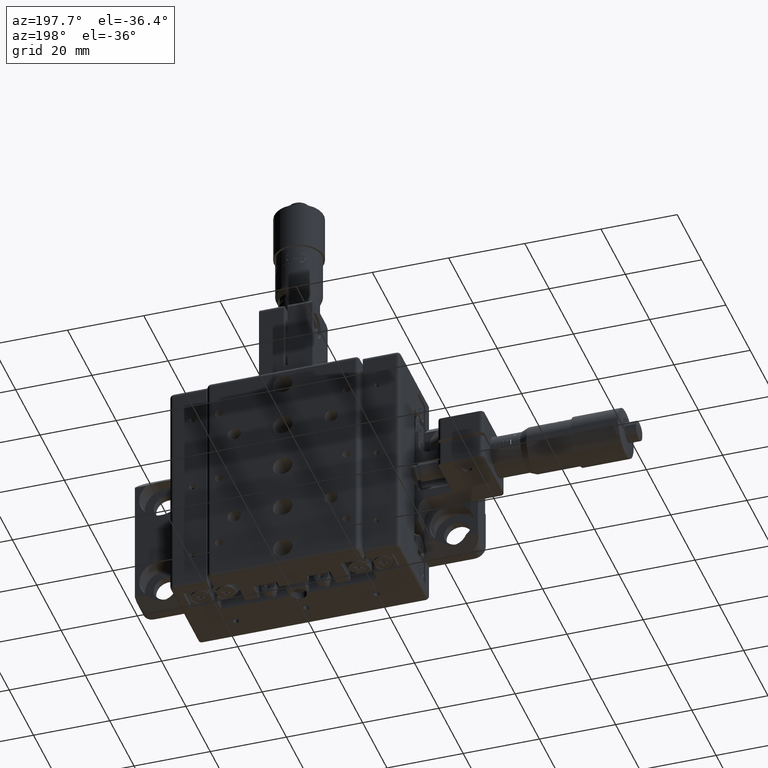
[diagram: clean part render]
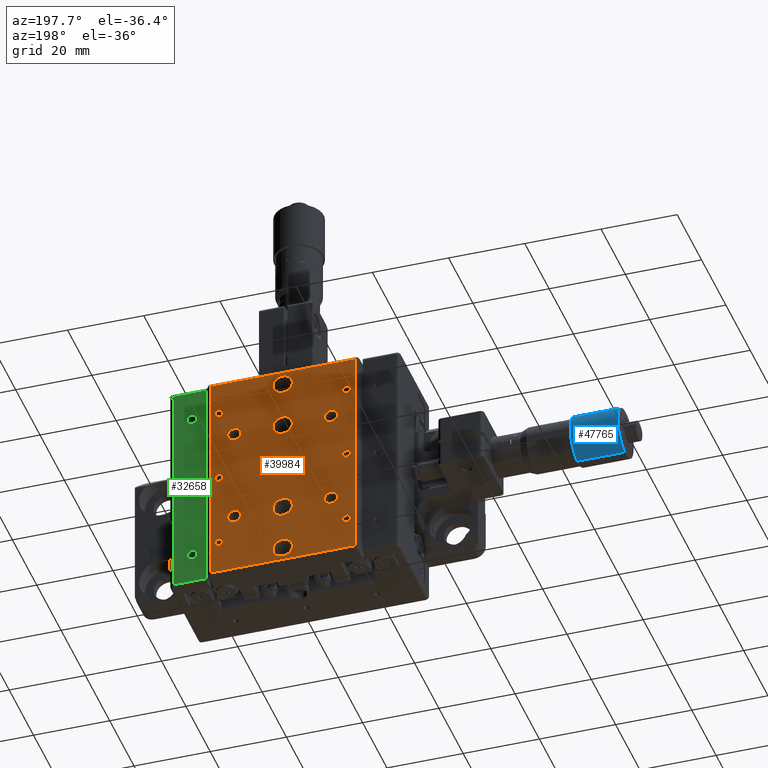
[diagram: same view with three faces highlighted in distinct colors, each labeled with its STEP entity id]
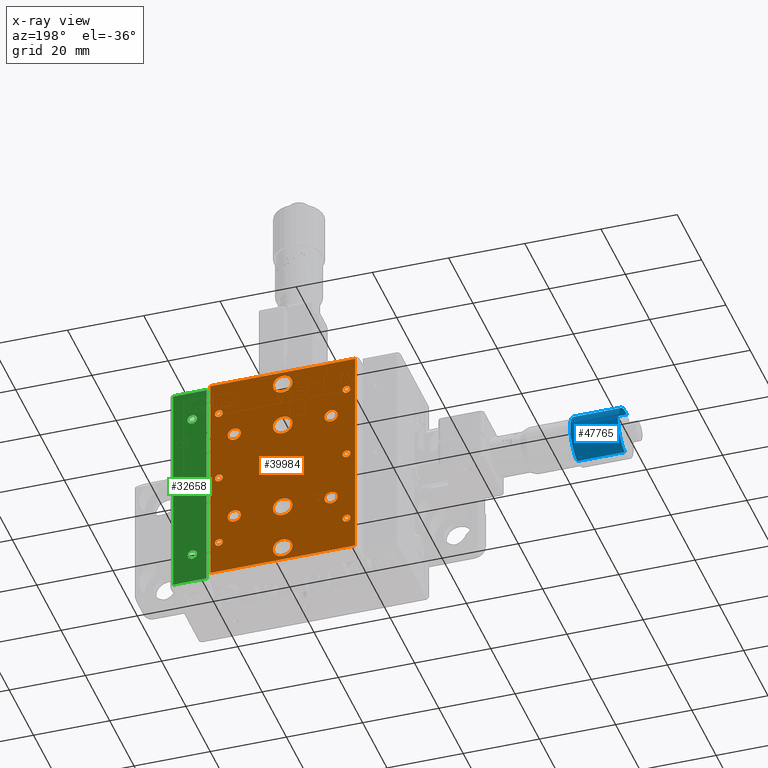
[diagram: x-ray of the same camera — body ghosted, the three highlighted faces saturated]
A machine part, auxiliary view with three faces highlighted in distinct colors.
The next image is the same camera in x-ray (body ghosted, the three faces saturated) — at least one of them is partly hidden behind the body in this view.
Their STEP definitions:

[orange] entity #39984 — the highlighted planar face has unit normal (-0, 1, -0).
#87 = AXIS2_PLACEMENT_3D ( 'NONE', #45107, #13342, #50493 ) ;
#143 = CIRCLE ( 'NONE', #40684, 1.024999999999994600 ) ;
#387 = ORIENTED_EDGE ( 'NONE', *, *, #55099, .F. ) ;
#418 = CARTESIAN_POINT ( 'NONE',  ( -1.603873673321537900E-012, 25.79999999999881400, -15.25270000000010900 ) ) ;
#641 = CARTESIAN_POINT ( 'NONE',  ( 18.99999999999842300, 25.79999999999913400, 28.99999999999989300 ) ) ;
#852 = EDGE_CURVE ( 'NONE', #3945, #21505, #47550, .T. ) ;
#1019 = EDGE_CURVE ( 'NONE', #47917, #67416, #50027, .T. ) ;
#1082 = DIRECTION ( 'NONE',  ( -1.633876696219429300E-014, 1.000000000000000000, -2.538117285788542700E-016 ) ) ;
#1132 = DIRECTION ( 'NONE',  ( -1.638907394299761400E-014, 1.000000000000000000, -2.538117285788542700E-016 ) ) ;
#1195 = AXIS2_PLACEMENT_3D ( 'NONE', #43201, #11487, #48583 ) ;
#1263 = AXIS2_PLACEMENT_3D ( 'NONE', #57486, #25689, #62786 ) ;
#1299 = FACE_OUTER_BOUND ( 'NONE', #34162, .T. ) ;
#1416 = CARTESIAN_POINT ( 'NONE',  ( -1.604227931610907800E-012, 25.79999999999881400, -12.70000000000011100 ) ) ;
#1533 = CIRCLE ( 'NONE', #28235, 1.024999999999991300 ) ;
#1598 = EDGE_CURVE ( 'NONE', #40451, #42971, #15044, .T. ) ;
#1759 = DIRECTION ( 'NONE',  ( -1.564113422114487800E-014, 1.000000000000000000, -2.538117285788541700E-016 ) ) ;
#2197 = EDGE_LOOP ( 'NONE', ( #68763, #11330 ) ) ;
#2328 = CARTESIAN_POINT ( 'NONE',  ( -1.616784113214822800E-012, 25.79999999999881100, -25.40000000000010500 ) ) ;
#2405 = ORIENTED_EDGE ( 'NONE', *, *, #36254, .F. ) ;
#2531 = CARTESIAN_POINT ( 'NONE',  ( -1.562707017318604100E-012, 25.79999999999881100, -22.84730000000010700 ) ) ;
#2833 = DIRECTION ( 'NONE',  ( -1.000000000000000000, -1.692413147294460400E-014, -1.387778780781349800E-016 ) ) ;
#2982 = FACE_BOUND ( 'NONE', #22711, .T. ) ;
#3443 = EDGE_CURVE ( 'NONE', #19066, #22764, #24343, .T. ) ;
#3642 = CIRCLE ( 'NONE', #12338, 1.024999999999994600 ) ;
#3750 = VERTEX_POINT ( 'NONE', #20803 ) ;
#3945 = VERTEX_POINT ( 'NONE', #43868 ) ;
#3979 = CARTESIAN_POINT ( 'NONE',  ( 16.74999999999841900, 25.79999999999908400, -21.02500000000010500 ) ) ;
#4351 = CIRCLE ( 'NONE', #36130, 2.552699999999998000 ) ;
#4441 = ORIENTED_EDGE ( 'NONE', *, *, #58776, .F. ) ;
#4644 = FACE_BOUND ( 'NONE', #42355, .T. ) ;
#4809 = CIRCLE ( 'NONE', #10150, 1.727199999999998100 ) ;
#5023 = VECTOR ( 'NONE', #23601, 1000.000000000000000 ) ;
#5103 = DIRECTION ( 'NONE',  ( -1.000000000000000000, -1.692413147294460400E-014, -1.387778780781349800E-016 ) ) ;
#5978 = EDGE_CURVE ( 'NONE', #47491, #61917, #4351, .T. ) ;
#6000 = EDGE_LOOP ( 'NONE', ( #33845, #35490 ) ) ;
#6096 = ORIENTED_EDGE ( 'NONE', *, *, #59088, .F. ) ;
#6285 = FACE_BOUND ( 'NONE', #38926, .T. ) ;
#6426 = ORIENTED_EDGE ( 'NONE', *, *, #9205, .F. ) ;
#6741 = DIRECTION ( 'NONE',  ( 1.387778780781269900E-016, 0.0000000000000000000, -1.000000000000000000 ) ) ;
#6905 = CARTESIAN_POINT ( 'NONE',  ( 12.69999999999836300, 25.79999999999902400, 12.69999999999989600 ) ) ;
#7229 = EDGE_LOOP ( 'NONE', ( #26338, #387 ) ) ;
#7283 = CIRCLE ( 'NONE', #1263, 1.024999999999991300 ) ;
#7302 = EDGE_CURVE ( 'NONE', #47858, #9190, #1533, .T. ) ;
#7303 = ORIENTED_EDGE ( 'NONE', *, *, #15355, .F. ) ;
#7455 = DIRECTION ( 'NONE',  ( -1.638907394299761400E-014, 1.000000000000000000, -2.538117285788542700E-016 ) ) ;
#7637 = AXIS2_PLACEMENT_3D ( 'NONE', #40880, #9192, #46271 ) ;
#7646 = DIRECTION ( 'NONE',  ( 1.387778780781269900E-016, 0.0000000000000000000, -1.000000000000000000 ) ) ;
#7758 = CARTESIAN_POINT ( 'NONE',  ( 16.74999999999841200, 25.79999999999908800, 1.024999999999888900 ) ) ;
#7894 = CARTESIAN_POINT ( 'NONE',  ( -1.607752889714093000E-012, 25.79999999999882100, 12.69999999999989300 ) ) ;
#8936 = AXIS2_PLACEMENT_3D ( 'NONE', #32815, #1082, #38153 ) ;
#9190 = VERTEX_POINT ( 'NONE', #65930 ) ;
#9192 = DIRECTION ( 'NONE',  ( -1.564113422114487800E-014, 1.000000000000000000, -2.538117285788541700E-016 ) ) ;
#9205 = EDGE_CURVE ( 'NONE', #25127, #16005, #43427, .T. ) ;
#9428 = CIRCLE ( 'NONE', #59776, 1.727199999999998100 ) ;
#9620 = EDGE_CURVE ( 'NONE', #45819, #35976, #16026, .T. ) ;
#10001 = CARTESIAN_POINT ( 'NONE',  ( -1.607752889714093000E-012, 25.79999999999882100, 12.69999999999989300 ) ) ;
#10150 = AXIS2_PLACEMENT_3D ( 'NONE', #50671, #18935, #56009 ) ;
#10170 = CARTESIAN_POINT ( 'NONE',  ( 12.69999999999836700, 25.79999999999901700, -12.70000000000011100 ) ) ;
#10211 = VECTOR ( 'NONE', #13570, 1000.000000000000000 ) ;
#10811 = VERTEX_POINT ( 'NONE', #45616 ) ;
#11037 = ORIENTED_EDGE ( 'NONE', *, *, #34597, .F. ) ;
#11330 = ORIENTED_EDGE ( 'NONE', *, *, #67989, .F. ) ;
#11487 = DIRECTION ( 'NONE',  ( -1.564113422114487800E-014, 1.000000000000000000, -2.538117285788541700E-016 ) ) ;
#11531 = PLANE ( 'NONE',  #8936 ) ;
#11730 = CARTESIAN_POINT ( 'NONE',  ( 16.74999999999837300, 25.79999999999909500, 19.99999999999989300 ) ) ;
#12245 = DIRECTION ( 'NONE',  ( 0.0000000000000000000, 0.0000000000000000000, -1.000000000000000000 ) ) ;
#12267 = AXIS2_PLACEMENT_3D ( 'NONE', #32863, #1132, #38201 ) ;
#12338 = AXIS2_PLACEMENT_3D ( 'NONE', #26376, #63461, #31629 ) ;
#12605 = CARTESIAN_POINT ( 'NONE',  ( -1.550150835714689100E-012, 25.79999999999881400, -10.14730000000011100 ) ) ;
#12689 = CARTESIAN_POINT ( 'NONE',  ( -12.70000000000163200, 25.79999999999860400, -14.42720000000010900 ) ) ;
#12774 = AXIS2_PLACEMENT_3D ( 'NONE', #28476, #65589, #33740 ) ;
#12865 = CARTESIAN_POINT ( 'NONE',  ( 18.99999999999842300, 25.79999999999913400, 28.99999999999989300 ) ) ;
#13034 = DIRECTION ( 'NONE',  ( 1.387778780781269900E-016, 0.0000000000000000000, -1.000000000000000000 ) ) ;
#13152 = CARTESIAN_POINT ( 'NONE',  ( 16.74999999999838000, 25.79999999999908400, -20.00000000000011000 ) ) ;
#13171 = LINE ( 'NONE', #66200, #67982 ) ;
#13206 = DIRECTION ( 'NONE',  ( 1.387778780781269900E-016, 0.0000000000000000000, -1.000000000000000000 ) ) ;
#13342 = DIRECTION ( 'NONE',  ( -1.564113422114487800E-014, 1.000000000000000000, -2.538117285788541700E-016 ) ) ;
#13570 = DIRECTION ( 'NONE',  ( -1.387778780781508800E-016, 2.775557561562865700E-016, 1.000000000000000000 ) ) ;
#14724 = ORIENTED_EDGE ( 'NONE', *, *, #3443, .F. ) ;
#14755 = ORIENTED_EDGE ( 'NONE', *, *, #19184, .T. ) ;
#14777 = DIRECTION ( 'NONE',  ( -1.638907394299761400E-014, 1.000000000000000000, -2.538117285788542700E-016 ) ) ;
#15004 = EDGE_CURVE ( 'NONE', #46439, #58244, #60513, .T. ) ;
#15044 = CIRCLE ( 'NONE', #7637, 1.727199999999998100 ) ;
#15165 = CIRCLE ( 'NONE', #21349, 2.552699999999998900 ) ;
#15192 = AXIS2_PLACEMENT_3D ( 'NONE', #44794, #39409, #13034 ) ;
#15306 = CIRCLE ( 'NONE', #48767, 2.552699999999998000 ) ;
#15350 = DIRECTION ( 'NONE',  ( 1.387778780781269900E-016, 0.0000000000000000000, -1.000000000000000000 ) ) ;
#15355 = EDGE_CURVE ( 'NONE', #67794, #3750, #4809, .T. ) ;
#15447 = FACE_BOUND ( 'NONE', #31550, .T. ) ;
#15537 = DIRECTION ( 'NONE',  ( 0.0000000000000000000, 0.0000000000000000000, -1.000000000000000000 ) ) ;
#15629 = ORIENTED_EDGE ( 'NONE', *, *, #31192, .F. ) ;
#16005 = VERTEX_POINT ( 'NONE', #26915 ) ;
#16026 = CIRCLE ( 'NONE', #45296, 1.024999999999994600 ) ;
#16135 = ORIENTED_EDGE ( 'NONE', *, *, #58492, .F. ) ;
#16218 = CARTESIAN_POINT ( 'NONE',  ( 12.69999999999839500, 25.79999999999902400, 14.42719999999989400 ) ) ;
#16298 = ORIENTED_EDGE ( 'NONE', *, *, #53686, .F. ) ;
#16651 = CARTESIAN_POINT ( 'NONE',  ( 16.74999999999841200, 25.79999999999909500, 18.97499999999990200 ) ) ;
#16956 = CARTESIAN_POINT ( 'NONE',  ( -16.75000000000160900, 25.79999999999854800, 18.97499999999990200 ) ) ;
#17105 = DIRECTION ( 'NONE',  ( -1.000000000000000000, -1.692413147294454800E-014, 0.0000000000000000000 ) ) ;
#17120 = FACE_BOUND ( 'NONE', #21745, .T. ) ;
#17455 = AXIS2_PLACEMENT_3D ( 'NONE', #10001, #47087, #15350 ) ;
#17474 = CARTESIAN_POINT ( 'NONE',  ( -1.607398631424722900E-012, 25.79999999999882100, 10.14729999999989500 ) ) ;
#18108 = CIRCLE ( 'NONE', #53519, 2.552699999999998000 ) ;
#18565 = DIRECTION ( 'NONE',  ( -1.000000000000000000, -1.692413147294454800E-014, 0.0000000000000000000 ) ) ;
#18770 = EDGE_CURVE ( 'NONE', #42971, #40451, #9428, .T. ) ;
#18795 = FACE_BOUND ( 'NONE', #43532, .T. ) ;
#18935 = DIRECTION ( 'NONE',  ( -1.564113422114487800E-014, 1.000000000000000000, -2.538117285788541700E-016 ) ) ;
#19066 = VERTEX_POINT ( 'NONE', #65342 ) ;
#19184 = EDGE_CURVE ( 'NONE', #32205, #30252, #54161, .T. ) ;
#19508 = CARTESIAN_POINT ( 'NONE',  ( 16.74999999999838000, 25.79999999999908400, -20.00000000000011000 ) ) ;
#19734 = DIRECTION ( 'NONE',  ( -1.564113422114487800E-014, 1.000000000000000000, -2.538117285788541700E-016 ) ) ;
#20015 = CARTESIAN_POINT ( 'NONE',  ( -16.75000000000160200, 25.79999999999853700, -21.02500000000010500 ) ) ;
#20466 = FACE_BOUND ( 'NONE', #46074, .T. ) ;
#20803 = CARTESIAN_POINT ( 'NONE',  ( -12.70000000000160000, 25.79999999999860400, -10.97280000000011300 ) ) ;
#21168 = AXIS2_PLACEMENT_3D ( 'NONE', #1416, #38488, #6741 ) ;
#21349 = AXIS2_PLACEMENT_3D ( 'NONE', #33481, #1759, #38828 ) ;
#21505 = VERTEX_POINT ( 'NONE', #16218 ) ;
#21745 = EDGE_LOOP ( 'NONE', ( #27864, #15629 ) ) ;
#22305 = ORIENTED_EDGE ( 'NONE', *, *, #35230, .F. ) ;
#22446 = ORIENTED_EDGE ( 'NONE', *, *, #23194, .F. ) ;
#22711 = EDGE_LOOP ( 'NONE', ( #6426, #46269 ) ) ;
#22764 = VERTEX_POINT ( 'NONE', #641 ) ;
#23194 = EDGE_CURVE ( 'NONE', #56901, #50173, #3642, .T. ) ;
#23368 = CIRCLE ( 'NONE', #38560, 1.727199999999998100 ) ;
#23601 = DIRECTION ( 'NONE',  ( 1.000000000000000000, 1.633876696219429300E-014, 1.387778780781364800E-016 ) ) ;
#24153 = CARTESIAN_POINT ( 'NONE',  ( -1.550178591290304900E-012, 25.79999999999881800, 2.552699999999891400 ) ) ;
#24214 = EDGE_CURVE ( 'NONE', #16005, #25127, #62546, .T. ) ;
#24343 = LINE ( 'NONE', #61131, #10211 ) ;
#24644 = ORIENTED_EDGE ( 'NONE', *, *, #51041, .T. ) ;
#24809 = DIRECTION ( 'NONE',  ( -1.000000000000000000, -1.692413147294454800E-014, 0.0000000000000000000 ) ) ;
#24957 = DIRECTION ( 'NONE',  ( -1.564113422114487800E-014, 1.000000000000000000, -2.538117285788541700E-016 ) ) ;
#25120 = DIRECTION ( 'NONE',  ( -1.564113422114487800E-014, 1.000000000000000000, -2.538117285788541700E-016 ) ) ;
#25127 = VERTEX_POINT ( 'NONE', #7758 ) ;
#25317 = CARTESIAN_POINT ( 'NONE',  ( -1.583634721332788800E-012, 25.79999999999882500, 27.95269999999989000 ) ) ;
#25675 = CARTESIAN_POINT ( 'NONE',  ( -12.70000000000160300, 25.79999999999861200, 14.42719999999988700 ) ) ;
#25689 = DIRECTION ( 'NONE',  ( -1.638907394299761400E-014, 1.000000000000000000, -2.538117285788542700E-016 ) ) ;
#25725 = VERTEX_POINT ( 'NONE', #16956 ) ;
#25799 = DIRECTION ( 'NONE',  ( 0.0000000000000000000, 0.0000000000000000000, -1.000000000000000000 ) ) ;
#26138 = ORIENTED_EDGE ( 'NONE', *, *, #5978, .F. ) ;
#26338 = ORIENTED_EDGE ( 'NONE', *, *, #1019, .F. ) ;
#26376 = CARTESIAN_POINT ( 'NONE',  ( -16.75000000000164100, 25.79999999999853700, -20.00000000000011000 ) ) ;
#26697 = CARTESIAN_POINT ( 'NONE',  ( -16.75000000000160900, 25.79999999999854800, 21.02499999999988500 ) ) ;
#26897 = CIRCLE ( 'NONE', #1195, 1.727199999999998100 ) ;
#26915 = CARTESIAN_POINT ( 'NONE',  ( 16.74999999999841200, 25.79999999999908800, -1.025000000000096900 ) ) ;
#27006 = CIRCLE ( 'NONE', #12267, 1.024999999999994600 ) ;
#27431 = DIRECTION ( 'NONE',  ( -1.564113422114487800E-014, 1.000000000000000000, -2.538117285788541700E-016 ) ) ;
#27568 = DIRECTION ( 'NONE',  ( -1.638907394299761400E-014, 1.000000000000000000, -2.538117285788542700E-016 ) ) ;
#27864 = ORIENTED_EDGE ( 'NONE', *, *, #9620, .F. ) ;
#28235 = AXIS2_PLACEMENT_3D ( 'NONE', #62609, #30822, #67955 ) ;
#28476 = CARTESIAN_POINT ( 'NONE',  ( -12.70000000000163500, 25.79999999999861200, 12.69999999999988900 ) ) ;
#29533 = FACE_BOUND ( 'NONE', #2197, .T. ) ;
#30099 = VERTEX_POINT ( 'NONE', #2531 ) ;
#30252 = VERTEX_POINT ( 'NONE', #56616 ) ;
#30476 = DIRECTION ( 'NONE',  ( -1.564113422114487800E-014, 1.000000000000000000, -2.538117285788541700E-016 ) ) ;
#30822 = DIRECTION ( 'NONE',  ( -1.638907394299761400E-014, 1.000000000000000000, -2.538117285788542700E-016 ) ) ;
#31177 = FACE_BOUND ( 'NONE', #66435, .T. ) ;
#31192 = EDGE_CURVE ( 'NONE', #35976, #45819, #56943, .T. ) ;
#31218 = CIRCLE ( 'NONE', #21168, 2.552699999999998000 ) ;
#31550 = EDGE_LOOP ( 'NONE', ( #6096, #66687 ) ) ;
#31629 = DIRECTION ( 'NONE',  ( -1.000000000000000000, -1.692413147294454800E-014, 0.0000000000000000000 ) ) ;
#32205 = VERTEX_POINT ( 'NONE', #35305 ) ;
#32499 = VERTEX_POINT ( 'NONE', #48748 ) ;
#32756 = AXIS2_PLACEMENT_3D ( 'NONE', #66393, #34562, #2833 ) ;
#32815 = CARTESIAN_POINT ( 'NONE',  ( 18.99999999999842600, 25.79999999999912000, -30.00000000000010700 ) ) ;
#32863 = CARTESIAN_POINT ( 'NONE',  ( -16.75000000000164800, 25.79999999999854800, 19.99999999999989300 ) ) ;
#32955 = ORIENTED_EDGE ( 'NONE', *, *, #52912, .F. ) ;
#32980 = EDGE_CURVE ( 'NONE', #56229, #56291, #15165, .T. ) ;
#33184 = LINE ( 'NONE', #12865, #5023 ) ;
#33481 = CARTESIAN_POINT ( 'NONE',  ( -1.604255687186523600E-012, 25.79999999999881800, -1.075528555105620400E-013 ) ) ;
#33740 = DIRECTION ( 'NONE',  ( 0.0000000000000000000, 0.0000000000000000000, -1.000000000000000000 ) ) ;
#33845 = ORIENTED_EDGE ( 'NONE', *, *, #1598, .F. ) ;
#34162 = EDGE_LOOP ( 'NONE', ( #14724, #24644, #14755, #58719 ) ) ;
#34562 = DIRECTION ( 'NONE',  ( -1.638907394299761400E-014, 1.000000000000000000, -2.538117285788542700E-016 ) ) ;
#34597 = EDGE_CURVE ( 'NONE', #56291, #56229, #48898, .T. ) ;
#35009 = ORIENTED_EDGE ( 'NONE', *, *, #65248, .F. ) ;
#35230 = EDGE_CURVE ( 'NONE', #61917, #47491, #64013, .T. ) ;
#35305 = CARTESIAN_POINT ( 'NONE',  ( -19.00000000000163100, 25.79999999999849800, -29.00000000000010700 ) ) ;
#35490 = ORIENTED_EDGE ( 'NONE', *, *, #18770, .F. ) ;
#35802 = CIRCLE ( 'NONE', #59248, 1.024999999999994600 ) ;
#35976 = VERTEX_POINT ( 'NONE', #16651 ) ;
#36130 = AXIS2_PLACEMENT_3D ( 'NONE', #7894, #44974, #13206 ) ;
#36254 = EDGE_CURVE ( 'NONE', #37628, #60281, #18108, .T. ) ;
#36700 = CIRCLE ( 'NONE', #43334, 2.552699999999998000 ) ;
#36849 = DIRECTION ( 'NONE',  ( -1.638907394299761400E-014, 1.000000000000000000, -2.538117285788542700E-016 ) ) ;
#36954 = EDGE_CURVE ( 'NONE', #25725, #40947, #27006, .T. ) ;
#37446 = EDGE_CURVE ( 'NONE', #58244, #46439, #26897, .T. ) ;
#37628 = VERTEX_POINT ( 'NONE', #12605 ) ;
#38085 = AXIS2_PLACEMENT_3D ( 'NONE', #46499, #14777, #51890 ) ;
#38153 = DIRECTION ( 'NONE',  ( -1.000000000000000000, -1.633876696219429300E-014, -1.387778780781364800E-016 ) ) ;
#38201 = DIRECTION ( 'NONE',  ( -1.000000000000000000, -1.692413147294454800E-014, 0.0000000000000000000 ) ) ;
#38488 = DIRECTION ( 'NONE',  ( -1.564113422114487800E-014, 1.000000000000000000, -2.538117285788541700E-016 ) ) ;
#38560 = AXIS2_PLACEMENT_3D ( 'NONE', #59234, #27431, #64560 ) ;
#38674 = EDGE_CURVE ( 'NONE', #21505, #3945, #59620, .T. ) ;
#38814 = AXIS2_PLACEMENT_3D ( 'NONE', #19508, #56602, #24809 ) ;
#38828 = DIRECTION ( 'NONE',  ( 1.387778780781269400E-016, 0.0000000000000000000, -1.000000000000000000 ) ) ;
#38926 = EDGE_LOOP ( 'NONE', ( #47251, #44561 ) ) ;
#39174 = CARTESIAN_POINT ( 'NONE',  ( 16.74999999999837300, 25.79999999999909500, 19.99999999999989300 ) ) ;
#39360 = DIRECTION ( 'NONE',  ( -1.564113422114487800E-014, 1.000000000000000000, -2.538117285788541700E-016 ) ) ;
#39409 = DIRECTION ( 'NONE',  ( -1.564113422114487800E-014, 1.000000000000000000, -2.538117285788541700E-016 ) ) ;
#39776 = CIRCLE ( 'NONE', #38085, 1.024999999999994600 ) ;
#39943 = VECTOR ( 'NONE', #39942, 1000.000000000000000 ) ;
#39942 = DIRECTION ( 'NONE',  ( -1.387778780781508800E-016, 2.775557561562865700E-016, 1.000000000000000000 ) ) ;
#39984 = ADVANCED_FACE ( 'NONE', ( #6285, #61067, #20466, #46941, #18795, #4644, #59439, #45264, #31177, #17120, #2982, #57803, #43586, #29533, #15447, #1299 ), #11531, .T. ) ;
#40451 = VERTEX_POINT ( 'NONE', #64792 ) ;
#40627 = ORIENTED_EDGE ( 'NONE', *, *, #32980, .F. ) ;
#40684 = AXIS2_PLACEMENT_3D ( 'NONE', #59358, #27568, #64684 ) ;
#40880 = CARTESIAN_POINT ( 'NONE',  ( 12.69999999999836700, 25.79999999999901700, -12.70000000000011100 ) ) ;
#40947 = VERTEX_POINT ( 'NONE', #26697 ) ;
#41077 = CARTESIAN_POINT ( 'NONE',  ( 12.69999999999839900, 25.79999999999901700, -10.97280000000011300 ) ) ;
#41152 = EDGE_CURVE ( 'NONE', #32499, #52373, #35802, .T. ) ;
#42355 = EDGE_LOOP ( 'NONE', ( #11037, #40627 ) ) ;
#42971 = VERTEX_POINT ( 'NONE', #41077 ) ;
#43201 = CARTESIAN_POINT ( 'NONE',  ( -12.70000000000163500, 25.79999999999861200, 12.69999999999988900 ) ) ;
#43207 = EDGE_LOOP ( 'NONE', ( #65905, #35009 ) ) ;
#43334 = AXIS2_PLACEMENT_3D ( 'NONE', #2328, #39360, #7646 ) ;
#43427 = CIRCLE ( 'NONE', #32756, 1.024999999999991300 ) ;
#43532 = EDGE_LOOP ( 'NONE', ( #22305, #26138 ) ) ;
#43586 = FACE_BOUND ( 'NONE', #44601, .T. ) ;
#43868 = CARTESIAN_POINT ( 'NONE',  ( 12.69999999999836300, 25.79999999999902400, 10.97279999999989600 ) ) ;
#43997 = DIRECTION ( 'NONE',  ( -1.564113422114487800E-014, 1.000000000000000000, -2.538117285788541700E-016 ) ) ;
#44545 = DIRECTION ( 'NONE',  ( -1.000000000000000000, -1.692413147294454800E-014, 0.0000000000000000000 ) ) ;
#44561 = ORIENTED_EDGE ( 'NONE', *, *, #38674, .F. ) ;
#44601 = EDGE_LOOP ( 'NONE', ( #22446, #4441 ) ) ;
#44794 = CARTESIAN_POINT ( 'NONE',  ( -1.637711817229007400E-012, 25.79999999999882500, 25.39999999999989200 ) ) ;
#44974 = DIRECTION ( 'NONE',  ( -1.564113422114487800E-014, 1.000000000000000000, -2.538117285788541700E-016 ) ) ;
#45046 = DIRECTION ( 'NONE',  ( -1.000000000000000000, -1.633876696219429300E-014, -1.387778780781364800E-016 ) ) ;
#45107 = CARTESIAN_POINT ( 'NONE',  ( -1.604255687186523600E-012, 25.79999999999881800, -1.075528555105620400E-013 ) ) ;
#45264 = FACE_BOUND ( 'NONE', #7229, .T. ) ;
#45296 = AXIS2_PLACEMENT_3D ( 'NONE', #11730, #48837, #17105 ) ;
#45595 = EDGE_CURVE ( 'NONE', #60281, #37628, #31218, .T. ) ;
#45616 = CARTESIAN_POINT ( 'NONE',  ( -1.616429854925452700E-012, 25.79999999999881100, -27.95270000000010300 ) ) ;
#45819 = VERTEX_POINT ( 'NONE', #56866 ) ;
#45848 = CARTESIAN_POINT ( 'NONE',  ( -16.75000000000160900, 25.79999999999854400, 1.024999999999882000 ) ) ;
#45891 = ORIENTED_EDGE ( 'NONE', *, *, #15004, .F. ) ;
#46074 = EDGE_LOOP ( 'NONE', ( #7303, #16298 ) ) ;
#46269 = ORIENTED_EDGE ( 'NONE', *, *, #24214, .F. ) ;
#46271 = DIRECTION ( 'NONE',  ( 0.0000000000000000000, 0.0000000000000000000, -1.000000000000000000 ) ) ;
#46439 = VERTEX_POINT ( 'NONE', #47441 ) ;
#46499 = CARTESIAN_POINT ( 'NONE',  ( -16.75000000000164800, 25.79999999999854800, 19.99999999999989300 ) ) ;
#46625 = CARTESIAN_POINT ( 'NONE',  ( -1.553675793817874100E-012, 25.79999999999882100, 15.25269999999989200 ) ) ;
#46941 = FACE_BOUND ( 'NONE', #6000, .T. ) ;
#47087 = DIRECTION ( 'NONE',  ( -1.564113422114487800E-014, 1.000000000000000000, -2.538117285788541700E-016 ) ) ;
#47251 = ORIENTED_EDGE ( 'NONE', *, *, #852, .F. ) ;
#47258 = DIRECTION ( 'NONE',  ( -1.564113422114487800E-014, 1.000000000000000000, -2.538117285788541700E-016 ) ) ;
#47441 = CARTESIAN_POINT ( 'NONE',  ( -12.70000000000163500, 25.79999999999861200, 10.97279999999989100 ) ) ;
#47491 = VERTEX_POINT ( 'NONE', #46625 ) ;
#47550 = CIRCLE ( 'NONE', #52103, 1.727199999999998100 ) ;
#47858 = VERTEX_POINT ( 'NONE', #45848 ) ;
#47917 = VERTEX_POINT ( 'NONE', #51499 ) ;
#48402 = AXIS2_PLACEMENT_3D ( 'NONE', #68659, #36849, #5103 ) ;
#48583 = DIRECTION ( 'NONE',  ( 0.0000000000000000000, 0.0000000000000000000, -1.000000000000000000 ) ) ;
#48748 = CARTESIAN_POINT ( 'NONE',  ( 16.74999999999841900, 25.79999999999908400, -18.97500000000011500 ) ) ;
#48767 = AXIS2_PLACEMENT_3D ( 'NONE', #51482, #19734, #56811 ) ;
#48837 = DIRECTION ( 'NONE',  ( -1.638907394299761400E-014, 1.000000000000000000, -2.538117285788542700E-016 ) ) ;
#48898 = CIRCLE ( 'NONE', #87, 2.552699999999998900 ) ;
#50027 = CIRCLE ( 'NONE', #15192, 2.552699999999998000 ) ;
#50173 = VERTEX_POINT ( 'NONE', #20015 ) ;
#50174 = AXIS2_PLACEMENT_3D ( 'NONE', #6905, #43997, #12245 ) ;
#50308 = DIRECTION ( 'NONE',  ( -1.638907394299761400E-014, 1.000000000000000000, -2.538117285788542700E-016 ) ) ;
#50493 = DIRECTION ( 'NONE',  ( 1.387778780781269400E-016, 0.0000000000000000000, -1.000000000000000000 ) ) ;
#50671 = CARTESIAN_POINT ( 'NONE',  ( -12.70000000000163200, 25.79999999999860400, -12.70000000000011100 ) ) ;
#50715 = AXIS2_PLACEMENT_3D ( 'NONE', #62254, #30476, #67599 ) ;
#51041 = EDGE_CURVE ( 'NONE', #19066, #32205, #13171, .T. ) ;
#51284 = CIRCLE ( 'NONE', #50715, 2.552699999999998000 ) ;
#51482 = CARTESIAN_POINT ( 'NONE',  ( -1.616784113214822800E-012, 25.79999999999881100, -25.40000000000010500 ) ) ;
#51499 = CARTESIAN_POINT ( 'NONE',  ( -1.637357558939637300E-012, 25.79999999999882500, 22.84729999999989400 ) ) ;
#51890 = DIRECTION ( 'NONE',  ( -1.000000000000000000, -1.692413147294454800E-014, 0.0000000000000000000 ) ) ;
#52103 = AXIS2_PLACEMENT_3D ( 'NONE', #62202, #25120, #25799 ) ;
#52373 = VERTEX_POINT ( 'NONE', #3979 ) ;
#52912 = EDGE_CURVE ( 'NONE', #30099, #10811, #15306, .T. ) ;
#53519 = AXIS2_PLACEMENT_3D ( 'NONE', #56742, #24957, #62030 ) ;
#53686 = EDGE_CURVE ( 'NONE', #3750, #67794, #23368, .T. ) ;
#54161 = LINE ( 'NONE', #61141, #39943 ) ;
#55099 = EDGE_CURVE ( 'NONE', #67416, #47917, #51284, .T. ) ;
#56009 = DIRECTION ( 'NONE',  ( 0.0000000000000000000, 0.0000000000000000000, -1.000000000000000000 ) ) ;
#56077 = AXIS2_PLACEMENT_3D ( 'NONE', #39174, #7455, #44545 ) ;
#56170 = CARTESIAN_POINT ( 'NONE',  ( -1.603901428897153500E-012, 25.79999999999881800, -2.552700000000106300 ) ) ;
#56229 = VERTEX_POINT ( 'NONE', #24153 ) ;
#56257 = CIRCLE ( 'NONE', #38814, 1.024999999999994600 ) ;
#56291 = VERTEX_POINT ( 'NONE', #56170 ) ;
#56549 = ORIENTED_EDGE ( 'NONE', *, *, #45595, .F. ) ;
#56602 = DIRECTION ( 'NONE',  ( -1.638907394299761400E-014, 1.000000000000000000, -2.538117285788542700E-016 ) ) ;
#56616 = CARTESIAN_POINT ( 'NONE',  ( -19.00000000000163800, 25.79999999999851600, 28.99999999999988600 ) ) ;
#56742 = CARTESIAN_POINT ( 'NONE',  ( -1.604227931610907800E-012, 25.79999999999881400, -12.70000000000011100 ) ) ;
#56811 = DIRECTION ( 'NONE',  ( 1.387778780781269900E-016, 0.0000000000000000000, -1.000000000000000000 ) ) ;
#56866 = CARTESIAN_POINT ( 'NONE',  ( 16.74999999999841200, 25.79999999999909500, 21.02499999999988500 ) ) ;
#56901 = VERTEX_POINT ( 'NONE', #57945 ) ;
#56943 = CIRCLE ( 'NONE', #56077, 1.024999999999994600 ) ;
#57486 = CARTESIAN_POINT ( 'NONE',  ( -16.75000000000164500, 25.79999999999854400, -1.110223024625156500E-013 ) ) ;
#57498 = EDGE_LOOP ( 'NONE', ( #45891, #68228 ) ) ;
#57803 = FACE_BOUND ( 'NONE', #43207, .T. ) ;
#57945 = CARTESIAN_POINT ( 'NONE',  ( -16.75000000000160200, 25.79999999999853700, -18.97500000000011500 ) ) ;
#58244 = VERTEX_POINT ( 'NONE', #25675 ) ;
#58492 = EDGE_CURVE ( 'NONE', #10811, #30099, #36700, .T. ) ;
#58719 = ORIENTED_EDGE ( 'NONE', *, *, #61451, .T. ) ;
#58776 = EDGE_CURVE ( 'NONE', #50173, #56901, #143, .T. ) ;
#59088 = EDGE_CURVE ( 'NONE', #40947, #25725, #39776, .T. ) ;
#59234 = CARTESIAN_POINT ( 'NONE',  ( -12.70000000000163200, 25.79999999999860400, -12.70000000000011100 ) ) ;
#59248 = AXIS2_PLACEMENT_3D ( 'NONE', #13152, #50308, #18565 ) ;
#59358 = CARTESIAN_POINT ( 'NONE',  ( -16.75000000000164100, 25.79999999999853700, -20.00000000000011000 ) ) ;
#59439 = FACE_BOUND ( 'NONE', #61175, .T. ) ;
#59620 = CIRCLE ( 'NONE', #50174, 1.727199999999998100 ) ;
#59776 = AXIS2_PLACEMENT_3D ( 'NONE', #10170, #47258, #15537 ) ;
#60281 = VERTEX_POINT ( 'NONE', #418 ) ;
#60513 = CIRCLE ( 'NONE', #12774, 1.727199999999998100 ) ;
#61067 = FACE_BOUND ( 'NONE', #57498, .T. ) ;
#61131 = CARTESIAN_POINT ( 'NONE',  ( 18.99999999999842600, 25.79999999999912000, -30.00000000000010700 ) ) ;
#61141 = CARTESIAN_POINT ( 'NONE',  ( -19.00000000000163100, 25.79999999999849800, -30.00000000000010700 ) ) ;
#61175 = EDGE_LOOP ( 'NONE', ( #56549, #2405 ) ) ;
#61451 = EDGE_CURVE ( 'NONE', #30252, #22764, #33184, .T. ) ;
#61917 = VERTEX_POINT ( 'NONE', #17474 ) ;
#62030 = DIRECTION ( 'NONE',  ( 1.387778780781269900E-016, 0.0000000000000000000, -1.000000000000000000 ) ) ;
#62202 = CARTESIAN_POINT ( 'NONE',  ( 12.69999999999836300, 25.79999999999902400, 12.69999999999989600 ) ) ;
#62254 = CARTESIAN_POINT ( 'NONE',  ( -1.637711817229007400E-012, 25.79999999999882500, 25.39999999999989200 ) ) ;
#62546 = CIRCLE ( 'NONE', #48402, 1.024999999999991300 ) ;
#62609 = CARTESIAN_POINT ( 'NONE',  ( -16.75000000000164500, 25.79999999999854400, -1.110223024625156500E-013 ) ) ;
#62786 = DIRECTION ( 'NONE',  ( -1.000000000000000000, -1.692413147294460400E-014, -1.387778780781349800E-016 ) ) ;
#63461 = DIRECTION ( 'NONE',  ( -1.638907394299761400E-014, 1.000000000000000000, -2.538117285788542700E-016 ) ) ;
#64013 = CIRCLE ( 'NONE', #17455, 2.552699999999998000 ) ;
#64560 = DIRECTION ( 'NONE',  ( 0.0000000000000000000, 0.0000000000000000000, -1.000000000000000000 ) ) ;
#64684 = DIRECTION ( 'NONE',  ( -1.000000000000000000, -1.692413147294454800E-014, 0.0000000000000000000 ) ) ;
#64792 = CARTESIAN_POINT ( 'NONE',  ( 12.69999999999836700, 25.79999999999901700, -14.42720000000010900 ) ) ;
#65248 = EDGE_CURVE ( 'NONE', #52373, #32499, #56257, .T. ) ;
#65342 = CARTESIAN_POINT ( 'NONE',  ( 18.99999999999842600, 25.79999999999912000, -29.00000000000010700 ) ) ;
#65589 = DIRECTION ( 'NONE',  ( -1.564113422114487800E-014, 1.000000000000000000, -2.538117285788541700E-016 ) ) ;
#65905 = ORIENTED_EDGE ( 'NONE', *, *, #41152, .F. ) ;
#65930 = CARTESIAN_POINT ( 'NONE',  ( -16.75000000000160900, 25.79999999999854400, -1.025000000000104100 ) ) ;
#66200 = CARTESIAN_POINT ( 'NONE',  ( -19.00000000000163400, 25.79999999999849800, -29.00000000000010700 ) ) ;
#66393 = CARTESIAN_POINT ( 'NONE',  ( 16.74999999999837600, 25.79999999999908800, -1.040834085586084300E-013 ) ) ;
#66435 = EDGE_LOOP ( 'NONE', ( #16135, #32955 ) ) ;
#66687 = ORIENTED_EDGE ( 'NONE', *, *, #36954, .F. ) ;
#67416 = VERTEX_POINT ( 'NONE', #25317 ) ;
#67599 = DIRECTION ( 'NONE',  ( 1.387778780781269900E-016, 0.0000000000000000000, -1.000000000000000000 ) ) ;
#67794 = VERTEX_POINT ( 'NONE', #12689 ) ;
#67955 = DIRECTION ( 'NONE',  ( -1.000000000000000000, -1.692413147294460400E-014, -1.387778780781349800E-016 ) ) ;
#67982 = VECTOR ( 'NONE', #45046, 1000.000000000000000 ) ;
#67989 = EDGE_CURVE ( 'NONE', #9190, #47858, #7283, .T. ) ;
#68228 = ORIENTED_EDGE ( 'NONE', *, *, #37446, .F. ) ;
#68659 = CARTESIAN_POINT ( 'NONE',  ( 16.74999999999837600, 25.79999999999908800, -1.040834085586084300E-013 ) ) ;
#68763 = ORIENTED_EDGE ( 'NONE', *, *, #7302, .F. ) ;

[blue] entity #47765 — the highlighted cylindrical surface (edge-blend (fillet) strip) has radius 6.5 mm, axis along (-1, 0, 0).
#267 = CARTESIAN_POINT ( 'NONE',  ( -102.4410230692081300, 13.65340742448703200, -6.443733061497050100 ) ) ;
#3158 = VERTEX_POINT ( 'NONE', #44498 ) ;
#5268 = DIRECTION ( 'NONE',  ( -1.000000000000000000, 1.158598041360921500E-016, 8.869783764114834200E-018 ) ) ;
#9261 = DIRECTION ( 'NONE',  ( -1.000000000000000000, 1.158598041360921500E-016, 8.869783764114834200E-018 ) ) ;
#10151 = CARTESIAN_POINT ( 'NONE',  ( -102.4410230692081300, 11.94659257551070700, 6.443733061496822700 ) ) ;
#10540 = CARTESIAN_POINT ( 'NONE',  ( -73.40000000000048900, 13.65340742448702600, -6.443733061497039400 ) ) ;
#12720 = ORIENTED_EDGE ( 'NONE', *, *, #28041, .T. ) ;
#14767 = EDGE_LOOP ( 'NONE', ( #37396, #25997, #12720, #55062 ) ) ;
#17310 = AXIS2_PLACEMENT_3D ( 'NONE', #40945, #9261, #46345 ) ;
#18307 = CYLINDRICAL_SURFACE ( 'NONE', #50178, 6.500000000000015100 ) ;
#21048 = CIRCLE ( 'NONE', #58335, 6.500000000000015100 ) ;
#25997 = ORIENTED_EDGE ( 'NONE', *, *, #59968, .T. ) ;
#26054 = VECTOR ( 'NONE', #5268, 1000.000000000000000 ) ;
#28041 = EDGE_CURVE ( 'NONE', #36340, #3158, #36882, .T. ) ;
#29200 = CARTESIAN_POINT ( 'NONE',  ( -102.4410230692081300, 12.79999999999886900, -1.134002782164408200E-013 ) ) ;
#31083 = CARTESIAN_POINT ( 'NONE',  ( -85.90000000000050300, 12.79999999999884600, -1.602331362101880400E-013 ) ) ;
#31989 = DIRECTION ( 'NONE',  ( -1.000000000000000000, 1.158598041360921500E-016, 8.869783764114834200E-018 ) ) ;
#34489 = DIRECTION ( 'NONE',  ( -1.000000000000000000, 1.158598041360921500E-016, 8.869783764114834200E-018 ) ) ;
#36340 = VERTEX_POINT ( 'NONE', #10540 ) ;
#36413 = DIRECTION ( 'NONE',  ( 0.0000000000000000000, 0.1312934499212554100, -0.9913435479226032600 ) ) ;
#36882 = LINE ( 'NONE', #267, #51065 ) ;
#37396 = ORIENTED_EDGE ( 'NONE', *, *, #42510, .F. ) ;
#40778 = EDGE_CURVE ( 'NONE', #49662, #3158, #21048, .T. ) ;
#40945 = CARTESIAN_POINT ( 'NONE',  ( -73.40000000000048900, 12.79999999999886400, -1.030061281504272500E-013 ) ) ;
#42510 = EDGE_CURVE ( 'NONE', #51945, #49662, #68342, .T. ) ;
#44498 = CARTESIAN_POINT ( 'NONE',  ( -85.90000000000050300, 13.65340742448700700, -6.443733061497098000 ) ) ;
#45285 = CARTESIAN_POINT ( 'NONE',  ( -73.40000000000048900, 11.94659257551070500, 6.443733061496817300 ) ) ;
#46345 = DIRECTION ( 'NONE',  ( 0.0000000000000000000, 0.1312934499212554100, -0.9913435479226032600 ) ) ;
#47765 = ADVANCED_FACE ( 'NONE', ( #51531 ), #18307, .T. ) ;
#49662 = VERTEX_POINT ( 'NONE', #68484 ) ;
#50178 = AXIS2_PLACEMENT_3D ( 'NONE', #29200, #34489, #55893 ) ;
#51065 = VECTOR ( 'NONE', #31989, 1000.000000000000000 ) ;
#51531 = FACE_OUTER_BOUND ( 'NONE', #14767, .T. ) ;
#51945 = VERTEX_POINT ( 'NONE', #45285 ) ;
#55062 = ORIENTED_EDGE ( 'NONE', *, *, #40778, .F. ) ;
#55893 = DIRECTION ( 'NONE',  ( 0.0000000000000000000, 0.1312934499212554100, -0.9913435479226032600 ) ) ;
#58335 = AXIS2_PLACEMENT_3D ( 'NONE', #31083, #68204, #36413 ) ;
#59968 = EDGE_CURVE ( 'NONE', #51945, #36340, #61233, .T. ) ;
#61233 = CIRCLE ( 'NONE', #17310, 6.500000000000015100 ) ;
#68204 = DIRECTION ( 'NONE',  ( -1.000000000000000000, 1.158598041360921500E-016, 8.869783764114834200E-018 ) ) ;
#68342 = LINE ( 'NONE', #10151, #26054 ) ;
#68484 = CARTESIAN_POINT ( 'NONE',  ( -85.90000000000050300, 11.94659257551068300, 6.443733061496775600 ) ) ;

[green] entity #32658 — the highlighted planar face has unit normal (0, -1, 0).
#210 = DIRECTION ( 'NONE',  ( 0.0000000000000000000, 0.0000000000000000000, 1.000000000000000000 ) ) ;
#1889 = CARTESIAN_POINT ( 'NONE',  ( 20.49999999999866800, 24.19999999999880600, -29.25000000000009900 ) ) ;
#2468 = LINE ( 'NONE', #64791, #35654 ) ;
#3620 = VERTEX_POINT ( 'NONE', #42966 ) ;
#3693 = CIRCLE ( 'NONE', #5158, 1.249999999999987100 ) ;
#4806 = CIRCLE ( 'NONE', #24424, 1.249999999999987100 ) ;
#5158 = AXIS2_PLACEMENT_3D ( 'NONE', #13872, #51010, #19253 ) ;
#5854 = VERTEX_POINT ( 'NONE', #54333 ) ;
#6491 = AXIS2_PLACEMENT_3D ( 'NONE', #63787, #31926, #210 ) ;
#9253 = ORIENTED_EDGE ( 'NONE', *, *, #66489, .F. ) ;
#10907 = DIRECTION ( 'NONE',  ( -0.0000000000000000000, 1.000000000000000000, -0.0000000000000000000 ) ) ;
#10920 = DIRECTION ( 'NONE',  ( 1.000000000000000000, -0.0000000000000000000, -0.0000000000000000000 ) ) ;
#11301 = ORIENTED_EDGE ( 'NONE', *, *, #20794, .T. ) ;
#11586 = CARTESIAN_POINT ( 'NONE',  ( 24.24999999999866800, 24.19999999999880600, -1.250000000000065900 ) ) ;
#12726 = FACE_BOUND ( 'NONE', #50625, .T. ) ;
#12761 = PLANE ( 'NONE',  #26409 ) ;
#13456 = DIRECTION ( 'NONE',  ( 0.0000000000000000000, -1.000000000000000000, 0.0000000000000000000 ) ) ;
#13872 = CARTESIAN_POINT ( 'NONE',  ( 24.24999999999866800, 24.19999999999880600, 20.99999999999992900 ) ) ;
#14045 = AXIS2_PLACEMENT_3D ( 'NONE', #22208, #59304, #27504 ) ;
#14344 = DIRECTION ( 'NONE',  ( -0.0000000000000000000, 1.000000000000000000, -0.0000000000000000000 ) ) ;
#18484 = VERTEX_POINT ( 'NONE', #11586 ) ;
#18825 = AXIS2_PLACEMENT_3D ( 'NONE', #46076, #14344, #51489 ) ;
#19253 = DIRECTION ( 'NONE',  ( 0.0000000000000000000, 0.0000000000000000000, 1.000000000000000000 ) ) ;
#19429 = VERTEX_POINT ( 'NONE', #27010 ) ;
#20333 = AXIS2_PLACEMENT_3D ( 'NONE', #42599, #10907, #47998 ) ;
#20794 = EDGE_CURVE ( 'NONE', #33610, #31248, #2468, .T. ) ;
#22024 = CIRCLE ( 'NONE', #6491, 1.249999999999987100 ) ;
#22208 = CARTESIAN_POINT ( 'NONE',  ( 24.24999999999866800, 24.19999999999880600, -21.00000000000007500 ) ) ;
#23026 = CIRCLE ( 'NONE', #14045, 1.249999999999987100 ) ;
#23992 = CARTESIAN_POINT ( 'NONE',  ( 29.24999999999866400, 24.19999999999880600, -29.25000000000009900 ) ) ;
#24424 = AXIS2_PLACEMENT_3D ( 'NONE', #25282, #62357, #30577 ) ;
#25226 = ORIENTED_EDGE ( 'NONE', *, *, #51677, .F. ) ;
#25282 = CARTESIAN_POINT ( 'NONE',  ( 24.24999999999866800, 24.19999999999880600, -7.877361969784919000E-014 ) ) ;
#26409 = AXIS2_PLACEMENT_3D ( 'NONE', #45215, #13456, #50609 ) ;
#26716 = CARTESIAN_POINT ( 'NONE',  ( 24.24999999999866800, 24.19999999999880600, -19.75000000000008500 ) ) ;
#26888 = FACE_BOUND ( 'NONE', #48418, .T. ) ;
#27010 = CARTESIAN_POINT ( 'NONE',  ( 24.24999999999866800, 24.19999999999880600, 1.249999999999908500 ) ) ;
#27504 = DIRECTION ( 'NONE',  ( 0.0000000000000000000, 0.0000000000000000000, 1.000000000000000000 ) ) ;
#28492 = VERTEX_POINT ( 'NONE', #41404 ) ;
#29848 = VERTEX_POINT ( 'NONE', #26716 ) ;
#30179 = ORIENTED_EDGE ( 'NONE', *, *, #52568, .T. ) ;
#30577 = DIRECTION ( 'NONE',  ( 0.0000000000000000000, 0.0000000000000000000, 1.000000000000000000 ) ) ;
#31248 = VERTEX_POINT ( 'NONE', #1889 ) ;
#31926 = DIRECTION ( 'NONE',  ( -0.0000000000000000000, 1.000000000000000000, -0.0000000000000000000 ) ) ;
#32658 = ADVANCED_FACE ( 'NONE', ( #12726, #26888, #55094, #67522 ), #12761, .F. ) ;
#32784 = CARTESIAN_POINT ( 'NONE',  ( 29.24999999999866400, 24.19999999999880600, 30.24999999999989700 ) ) ;
#32941 = VECTOR ( 'NONE', #38126, 1000.000000000000000 ) ;
#32956 = DIRECTION ( 'NONE',  ( -1.000000000000000000, 0.0000000000000000000, 0.0000000000000000000 ) ) ;
#33605 = CARTESIAN_POINT ( 'NONE',  ( 24.24999999999866800, 24.19999999999880600, 19.74999999999994000 ) ) ;
#33610 = VERTEX_POINT ( 'NONE', #23992 ) ;
#35332 = EDGE_CURVE ( 'NONE', #5854, #54511, #64799, .T. ) ;
#35654 = VECTOR ( 'NONE', #32956, 1000.000000000000000 ) ;
#35831 = ORIENTED_EDGE ( 'NONE', *, *, #68216, .T. ) ;
#36536 = VECTOR ( 'NONE', #10920, 1000.000000000000000 ) ;
#38126 = DIRECTION ( 'NONE',  ( 0.0000000000000000000, 0.0000000000000000000, -1.000000000000000000 ) ) ;
#38566 = ORIENTED_EDGE ( 'NONE', *, *, #46233, .F. ) ;
#41204 = EDGE_CURVE ( 'NONE', #28492, #29848, #41561, .T. ) ;
#41404 = CARTESIAN_POINT ( 'NONE',  ( 24.24999999999866800, 24.19999999999880600, -22.25000000000006000 ) ) ;
#41561 = CIRCLE ( 'NONE', #18825, 1.249999999999987100 ) ;
#42599 = CARTESIAN_POINT ( 'NONE',  ( 24.24999999999866800, 24.19999999999880600, 20.99999999999992900 ) ) ;
#42618 = CARTESIAN_POINT ( 'NONE',  ( -30.25000000000133200, 24.19999999999880600, 29.24999999999989700 ) ) ;
#42966 = CARTESIAN_POINT ( 'NONE',  ( 24.24999999999866800, 24.19999999999880600, 22.24999999999991500 ) ) ;
#43588 = VECTOR ( 'NONE', #58260, 1000.000000000000000 ) ;
#45215 = CARTESIAN_POINT ( 'NONE',  ( -30.25000000000133200, 24.19999999999880600, 30.24999999999989700 ) ) ;
#46031 = EDGE_CURVE ( 'NONE', #18484, #19429, #22024, .T. ) ;
#46076 = CARTESIAN_POINT ( 'NONE',  ( 24.24999999999866800, 24.19999999999880600, -21.00000000000007500 ) ) ;
#46233 = EDGE_CURVE ( 'NONE', #3620, #55466, #3693, .T. ) ;
#47520 = CARTESIAN_POINT ( 'NONE',  ( 20.49999999999866800, 24.19999999999880600, -30.25000000000009900 ) ) ;
#47998 = DIRECTION ( 'NONE',  ( 0.0000000000000000000, 0.0000000000000000000, 1.000000000000000000 ) ) ;
#48129 = ORIENTED_EDGE ( 'NONE', *, *, #46031, .F. ) ;
#48418 = EDGE_LOOP ( 'NONE', ( #25226, #66383 ) ) ;
#49515 = ORIENTED_EDGE ( 'NONE', *, *, #59977, .F. ) ;
#50609 = DIRECTION ( 'NONE',  ( 0.0000000000000000000, -0.0000000000000000000, -1.000000000000000000 ) ) ;
#50625 = EDGE_LOOP ( 'NONE', ( #38566, #9253 ) ) ;
#51010 = DIRECTION ( 'NONE',  ( -0.0000000000000000000, 1.000000000000000000, -0.0000000000000000000 ) ) ;
#51489 = DIRECTION ( 'NONE',  ( 0.0000000000000000000, 0.0000000000000000000, 1.000000000000000000 ) ) ;
#51677 = EDGE_CURVE ( 'NONE', #29848, #28492, #23026, .T. ) ;
#52568 = EDGE_CURVE ( 'NONE', #31248, #5854, #56850, .T. ) ;
#53498 = ORIENTED_EDGE ( 'NONE', *, *, #35332, .T. ) ;
#53943 = EDGE_LOOP ( 'NONE', ( #35831, #11301, #30179, #53498 ) ) ;
#54333 = CARTESIAN_POINT ( 'NONE',  ( 20.49999999999866800, 24.19999999999880600, 29.24999999999989700 ) ) ;
#54511 = VERTEX_POINT ( 'NONE', #60302 ) ;
#55094 = FACE_BOUND ( 'NONE', #55424, .T. ) ;
#55424 = EDGE_LOOP ( 'NONE', ( #49515, #48129 ) ) ;
#55466 = VERTEX_POINT ( 'NONE', #33605 ) ;
#56850 = LINE ( 'NONE', #47520, #43588 ) ;
#58260 = DIRECTION ( 'NONE',  ( -0.0000000000000000000, -0.0000000000000000000, 1.000000000000000000 ) ) ;
#59304 = DIRECTION ( 'NONE',  ( -0.0000000000000000000, 1.000000000000000000, -0.0000000000000000000 ) ) ;
#59977 = EDGE_CURVE ( 'NONE', #19429, #18484, #4806, .T. ) ;
#60302 = CARTESIAN_POINT ( 'NONE',  ( 29.24999999999866400, 24.19999999999880600, 29.24999999999989700 ) ) ;
#61210 = LINE ( 'NONE', #32784, #32941 ) ;
#62357 = DIRECTION ( 'NONE',  ( -0.0000000000000000000, 1.000000000000000000, -0.0000000000000000000 ) ) ;
#63787 = CARTESIAN_POINT ( 'NONE',  ( 24.24999999999866800, 24.19999999999880600, -7.877361969784919000E-014 ) ) ;
#64791 = CARTESIAN_POINT ( 'NONE',  ( 20.49999999999867100, 24.19999999999880600, -29.25000000000009900 ) ) ;
#64799 = LINE ( 'NONE', #42618, #36536 ) ;
#66383 = ORIENTED_EDGE ( 'NONE', *, *, #41204, .F. ) ;
#66489 = EDGE_CURVE ( 'NONE', #55466, #3620, #66728, .T. ) ;
#66728 = CIRCLE ( 'NONE', #20333, 1.249999999999987100 ) ;
#67522 = FACE_OUTER_BOUND ( 'NONE', #53943, .T. ) ;
#68216 = EDGE_CURVE ( 'NONE', #54511, #33610, #61210, .T. ) ;